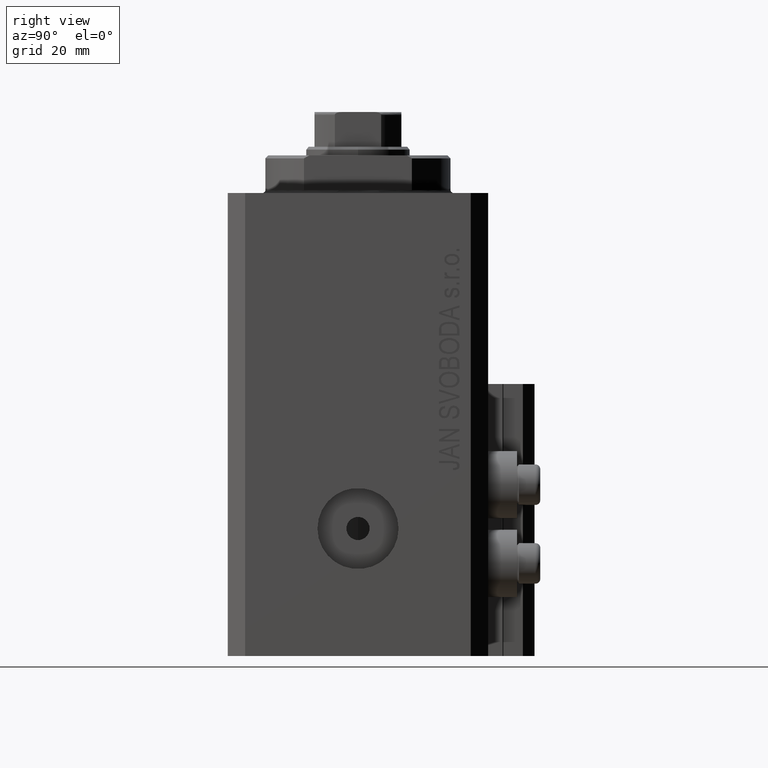
[diagram: clean part render]
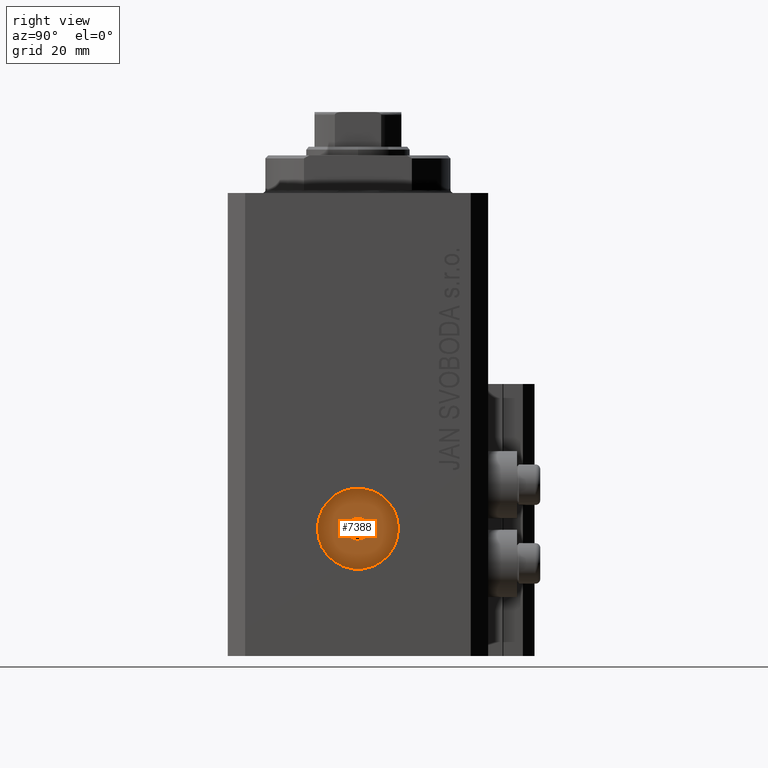
[diagram: same view with one face highlighted and labeled with its STEP entity id]
A machine part, right view. The second image highlights one B-rep face of the part: STEP entity #7388.
In plain terms, the highlighted planar face has unit normal (1, -0, 0).
Its self-contained STEP definition (entity closure, byte-faithful):
#2708 = CARTESIAN_POINT ( 'NONE',  ( 27.99999999999677414, 4.270088556253899177E-14, -58.00000000000000000 ) ) ;
#3323 = CARTESIAN_POINT ( 'NONE',  ( 27.99999999999677414, 4.270088556253900439E-14, -58.00000000000000000 ) ) ;
#5528 = CARTESIAN_POINT ( 'NONE',  ( 27.99999999999668177, -6.999999999999950262, -58.00000000000000000 ) ) ;
#7388 = ADVANCED_FACE ( 'NONE', ( #33582, #40551 ), #33338, .T. ) ;
#8014 = EDGE_LOOP ( 'NONE', ( #36428, #46201 ) ) ;
#10074 = CARTESIAN_POINT ( 'NONE',  ( 27.99999999999680256, 2.000000000000045741, -58.00000000000000000 ) ) ;
#10515 = DIRECTION ( 'NONE',  ( 1.387778780781443467E-14, 1.000000000000000000, 0.000000000000000000 ) ) ;
#10530 = AXIS2_PLACEMENT_3D ( 'NONE', #3323, #32617, #17281 ) ;
#11963 = CIRCLE ( 'NONE', #25751, 6.999999999999992895 ) ;
#11965 = CARTESIAN_POINT ( 'NONE',  ( 27.99999999999677414, 4.270088556253899177E-14, -58.00000000000000000 ) ) ;
#13496 = DIRECTION ( 'NONE',  ( 1.000000000000000000, -1.334402673828349134E-14, 0.000000000000000000 ) ) ;
#13595 = CIRCLE ( 'NONE', #10530, 2.000000000000003109 ) ;
#15988 = CIRCLE ( 'NONE', #20581, 2.000000000000003109 ) ;
#17281 = DIRECTION ( 'NONE',  ( 1.387778780781443467E-14, 1.000000000000000000, 0.000000000000000000 ) ) ;
#17374 = DIRECTION ( 'NONE',  ( 1.000000000000000000, -1.334402673828349134E-14, 0.000000000000000000 ) ) ;
#20581 = AXIS2_PLACEMENT_3D ( 'NONE', #39573, #21340, #10515 ) ;
#21340 = DIRECTION ( 'NONE',  ( 1.000000000000000000, -1.334402673828349134E-14, 0.000000000000000000 ) ) ;
#21627 = VERTEX_POINT ( 'NONE', #23657 ) ;
#23657 = CARTESIAN_POINT ( 'NONE',  ( 27.99999999999686651, 7.000000000000035527, -58.00000000000000000 ) ) ;
#23857 = ORIENTED_EDGE ( 'NONE', *, *, #36262, .T. ) ;
#24050 = EDGE_CURVE ( 'NONE', #21627, #35615, #25032, .T. ) ;
#24274 = AXIS2_PLACEMENT_3D ( 'NONE', #2708, #17374, #24805 ) ;
#24303 = DIRECTION ( 'NONE',  ( 1.338215252896395374E-14, 1.000000000000000000, 0.000000000000000000 ) ) ;
#24805 = DIRECTION ( 'NONE',  ( 1.338215252896395374E-14, 1.000000000000000000, 0.000000000000000000 ) ) ;
#25032 = CIRCLE ( 'NONE', #24274, 6.999999999999992895 ) ;
#25751 = AXIS2_PLACEMENT_3D ( 'NONE', #31263, #13496, #24303 ) ;
#26688 = VERTEX_POINT ( 'NONE', #10074 ) ;
#27170 = VERTEX_POINT ( 'NONE', #47079 ) ;
#29742 = DIRECTION ( 'NONE',  ( 1.334402673828349134E-14, 1.000000000000000000, 0.000000000000000000 ) ) ;
#30421 = AXIS2_PLACEMENT_3D ( 'NONE', #11965, #37421, #29742 ) ;
#31263 = CARTESIAN_POINT ( 'NONE',  ( 27.99999999999677414, 4.270088556253899177E-14, -58.00000000000000000 ) ) ;
#32617 = DIRECTION ( 'NONE',  ( 1.000000000000000000, -1.334402673828349134E-14, 0.000000000000000000 ) ) ;
#33338 = PLANE ( 'NONE',  #30421 ) ;
#33582 = FACE_BOUND ( 'NONE', #8014, .T. ) ;
#33874 = ORIENTED_EDGE ( 'NONE', *, *, #24050, .T. ) ;
#35615 = VERTEX_POINT ( 'NONE', #5528 ) ;
#36262 = EDGE_CURVE ( 'NONE', #35615, #21627, #11963, .T. ) ;
#36428 = ORIENTED_EDGE ( 'NONE', *, *, #39435, .F. ) ;
#37421 = DIRECTION ( 'NONE',  ( 1.000000000000000000, -1.334402673828349134E-14, 0.000000000000000000 ) ) ;
#39435 = EDGE_CURVE ( 'NONE', #26688, #27170, #13595, .T. ) ;
#39573 = CARTESIAN_POINT ( 'NONE',  ( 27.99999999999677414, 4.270088556253900439E-14, -58.00000000000000000 ) ) ;
#40551 = FACE_OUTER_BOUND ( 'NONE', #46261, .T. ) ;
#42614 = EDGE_CURVE ( 'NONE', #27170, #26688, #15988, .T. ) ;
#46201 = ORIENTED_EDGE ( 'NONE', *, *, #42614, .F. ) ;
#46261 = EDGE_LOOP ( 'NONE', ( #33874, #23857 ) ) ;
#47079 = CARTESIAN_POINT ( 'NONE',  ( 27.99999999999674571, -1.999999999999960476, -58.00000000000000000 ) ) ;